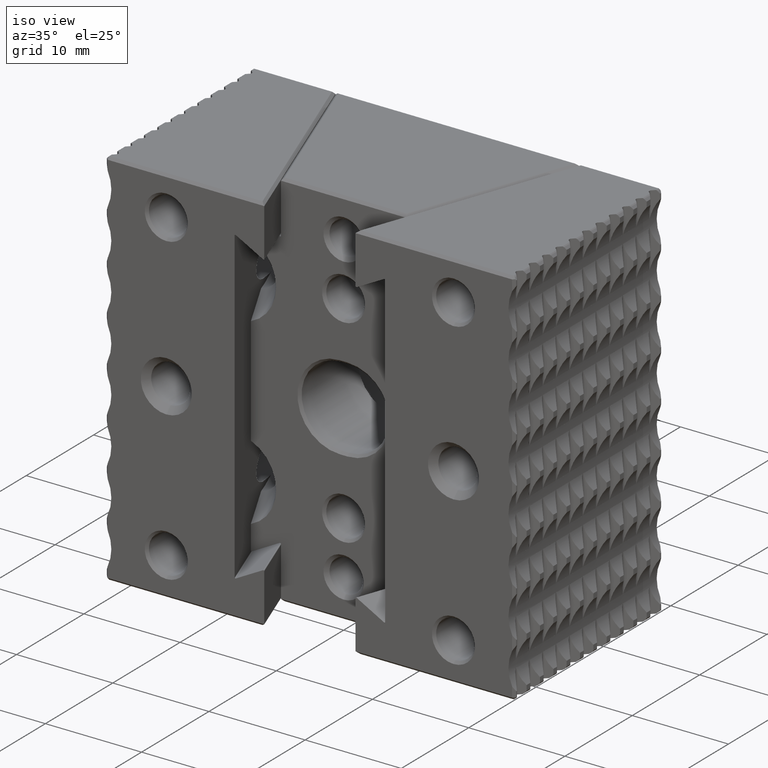
[diagram: clean part render]
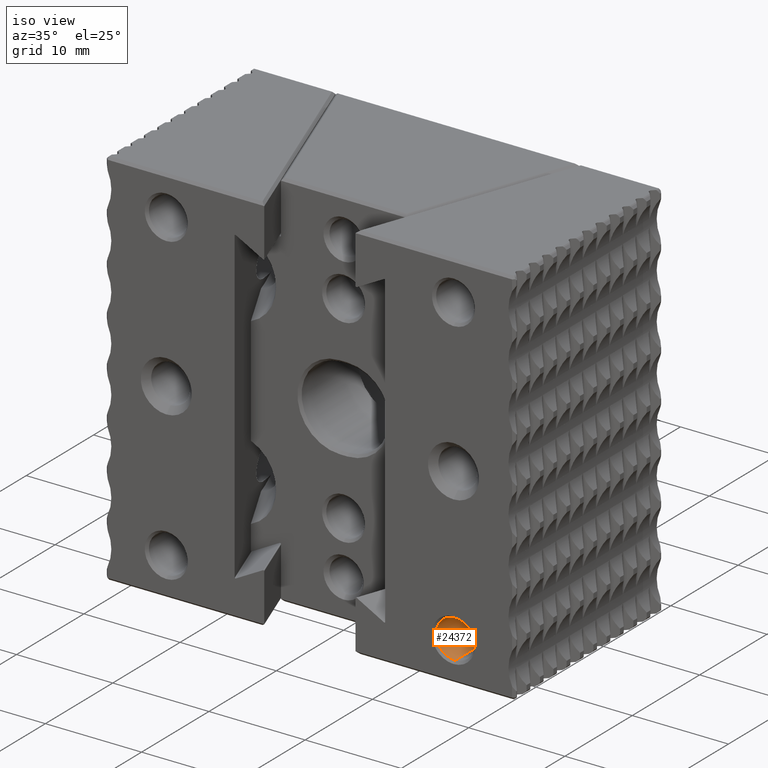
[diagram: same view with one face highlighted and labeled with its STEP entity id]
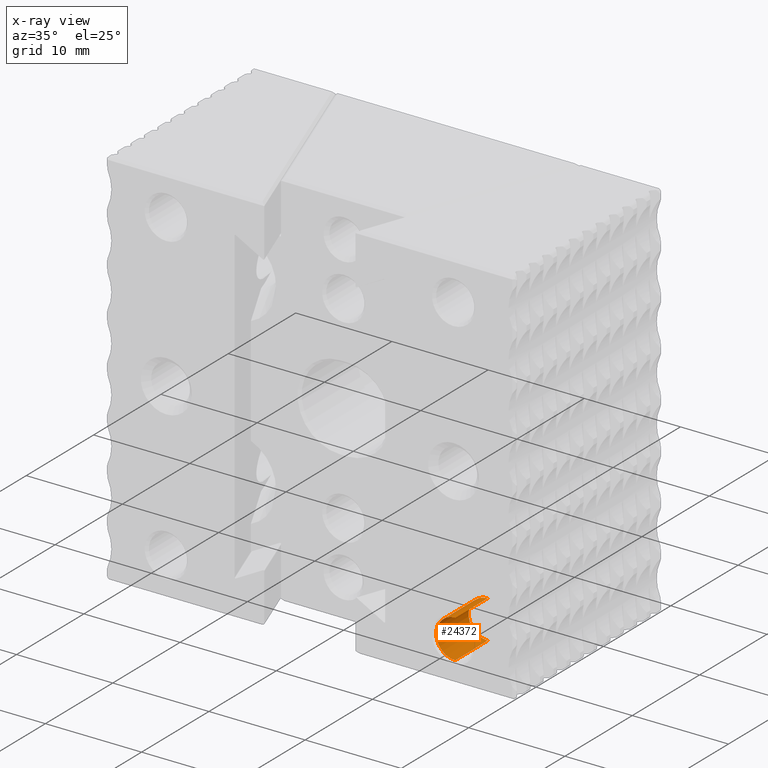
[diagram: x-ray of the same camera — body ghosted, the highlighted face saturated]
A machine part, iso view. The second image highlights one B-rep face of the part: STEP entity #24372.
The next image is the same camera in x-ray: the body ghosted, the highlighted face saturated — about 0% of this face is hidden behind the body in this view.
In plain terms, the highlighted cylindrical surface (edge-blend (fillet) strip) has radius 1.9875 mm, axis along (0, -1, -0).
Its self-contained STEP definition (entity closure, byte-faithful):
#970 = AXIS2_PLACEMENT_3D ( 'NONE', #30286, #15061, #27722 ) ;
#1296 = VERTEX_POINT ( 'NONE', #22241 ) ;
#3398 = DIRECTION ( 'NONE',  ( 0.0000000000000000000, -1.000000000000000000, 0.0000000000000000000 ) ) ;
#3526 = FACE_OUTER_BOUND ( 'NONE', #26920, .T. ) ;
#4445 = CARTESIAN_POINT ( 'NONE',  ( 0.2500000000000000000, 0.2000000000000000111, 0.7032499999999999307 ) ) ;
#6676 = CARTESIAN_POINT ( 'NONE',  ( 0.2500000000000000000, 0.2000000000000000111, 0.5467500000000000693 ) ) ;
#6994 = DIRECTION ( 'NONE',  ( -0.0000000000000000000, -1.000000000000000000, -0.0000000000000000000 ) ) ;
#7137 = CARTESIAN_POINT ( 'NONE',  ( 0.2500000000000000000, 0.2000000000000000111, 0.5467500000000000693 ) ) ;
#8577 = ORIENTED_EDGE ( 'NONE', *, *, #21734, .F. ) ;
#9301 = EDGE_CURVE ( 'NONE', #28373, #1296, #25084, .T. ) ;
#9721 = VECTOR ( 'NONE', #19833, 39.37007874015748143 ) ;
#10497 = LINE ( 'NONE', #7137, #9721 ) ;
#11386 = EDGE_CURVE ( 'NONE', #11890, #32510, #25370, .T. ) ;
#11835 = DIRECTION ( 'NONE',  ( 0.0000000000000000000, -1.000000000000000000, 0.0000000000000000000 ) ) ;
#11890 = VERTEX_POINT ( 'NONE', #6676 ) ;
#15061 = DIRECTION ( 'NONE',  ( -0.0000000000000000000, -1.000000000000000000, -0.0000000000000000000 ) ) ;
#15304 = CARTESIAN_POINT ( 'NONE',  ( 0.2500000000000000000, 0.01000000000000064379, 0.5467500000000000693 ) ) ;
#17411 = AXIS2_PLACEMENT_3D ( 'NONE', #18625, #3398, #21173 ) ;
#17988 = LINE ( 'NONE', #4445, #23954 ) ;
#18078 = ORIENTED_EDGE ( 'NONE', *, *, #11386, .F. ) ;
#18245 = ORIENTED_EDGE ( 'NONE', *, *, #28699, .T. ) ;
#18625 = CARTESIAN_POINT ( 'NONE',  ( 0.2500000000000000000, 0.2000000000000000111, 0.6250000000000000000 ) ) ;
#19833 = DIRECTION ( 'NONE',  ( -0.0000000000000000000, -1.000000000000000000, -0.0000000000000000000 ) ) ;
#20721 = AXIS2_PLACEMENT_3D ( 'NONE', #27081, #11835, #29626 ) ;
#21173 = DIRECTION ( 'NONE',  ( 0.0000000000000000000, 0.0000000000000000000, -1.000000000000000000 ) ) ;
#21734 = EDGE_CURVE ( 'NONE', #32510, #1296, #17988, .T. ) ;
#22241 = CARTESIAN_POINT ( 'NONE',  ( 0.2500000000000000000, 0.01000000000000064379, 0.7032499999999999307 ) ) ;
#23954 = VECTOR ( 'NONE', #6994, 39.37007874015748143 ) ;
#24372 = ADVANCED_FACE ( 'NONE', ( #3526 ), #28188, .F. ) ;
#25084 = CIRCLE ( 'NONE', #20721, 0.07824999999999990297 ) ;
#25370 = CIRCLE ( 'NONE', #17411, 0.07824999999999997236 ) ;
#26566 = ORIENTED_EDGE ( 'NONE', *, *, #9301, .T. ) ;
#26920 = EDGE_LOOP ( 'NONE', ( #8577, #18078, #18245, #26566 ) ) ;
#27081 = CARTESIAN_POINT ( 'NONE',  ( 0.2500000000000000000, 0.01000000000000064379, 0.6250000000000000000 ) ) ;
#27722 = DIRECTION ( 'NONE',  ( 0.0000000000000000000, 0.0000000000000000000, -1.000000000000000000 ) ) ;
#28188 = CYLINDRICAL_SURFACE ( 'NONE', #970, 0.07824999999999997236 ) ;
#28373 = VERTEX_POINT ( 'NONE', #15304 ) ;
#28699 = EDGE_CURVE ( 'NONE', #11890, #28373, #10497, .T. ) ;
#28751 = CARTESIAN_POINT ( 'NONE',  ( 0.2500000000000000000, 0.2000000000000000111, 0.7032499999999999307 ) ) ;
#29626 = DIRECTION ( 'NONE',  ( 0.0000000000000000000, 0.0000000000000000000, 1.000000000000000000 ) ) ;
#30286 = CARTESIAN_POINT ( 'NONE',  ( 0.2500000000000000000, 0.2000000000000000111, 0.6250000000000000000 ) ) ;
#32510 = VERTEX_POINT ( 'NONE', #28751 ) ;